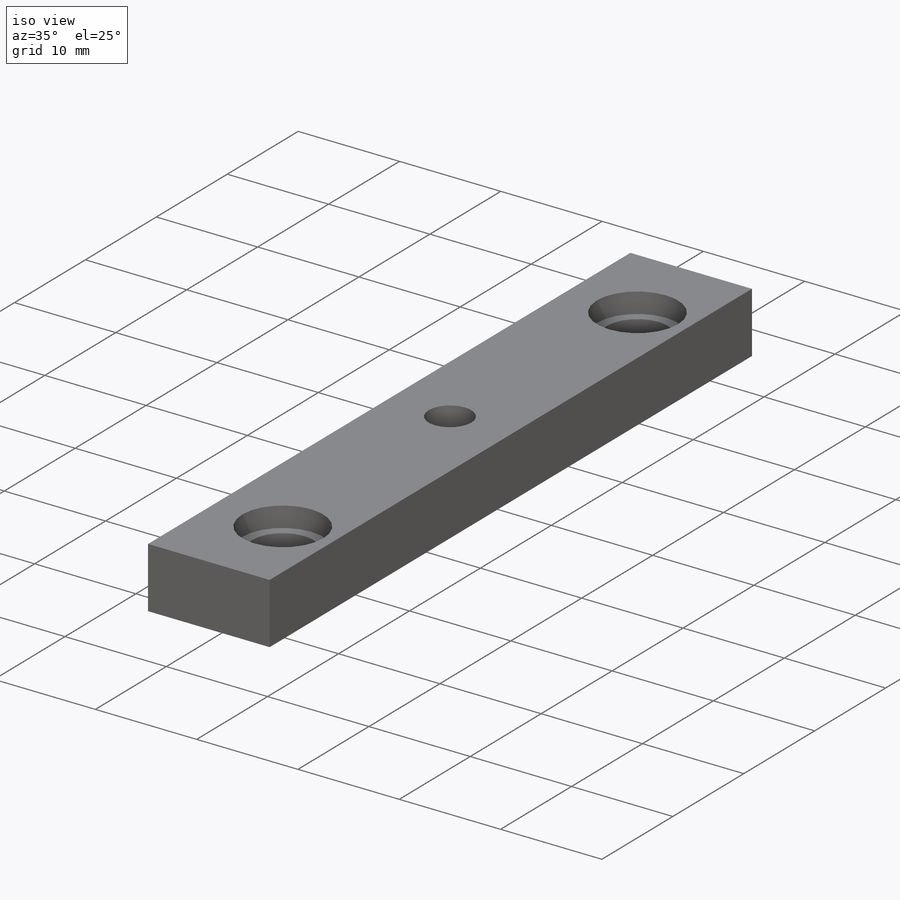
[diagram: iso view]
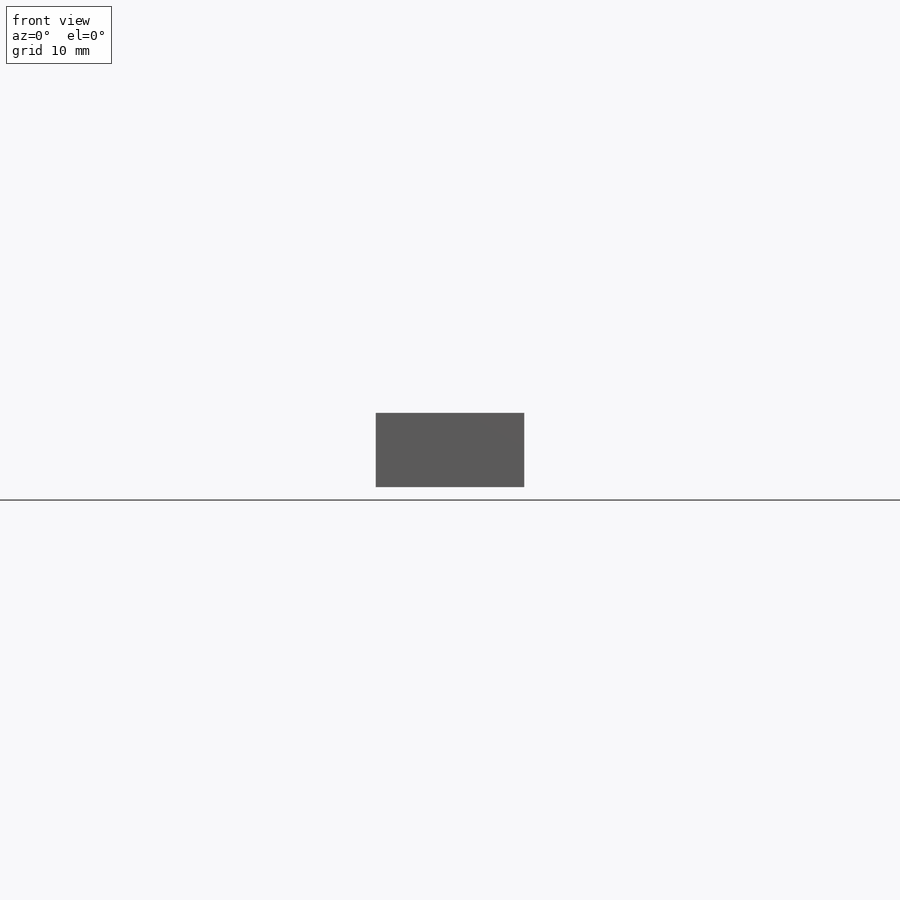
[diagram: front view]
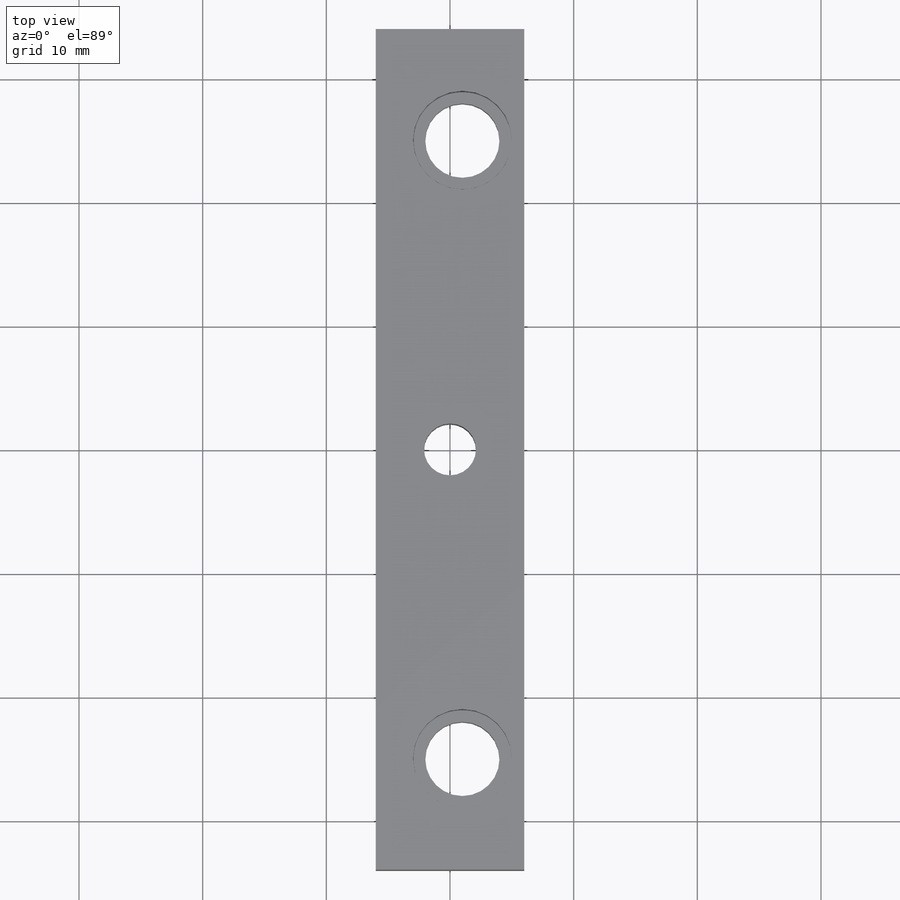
[diagram: top view]
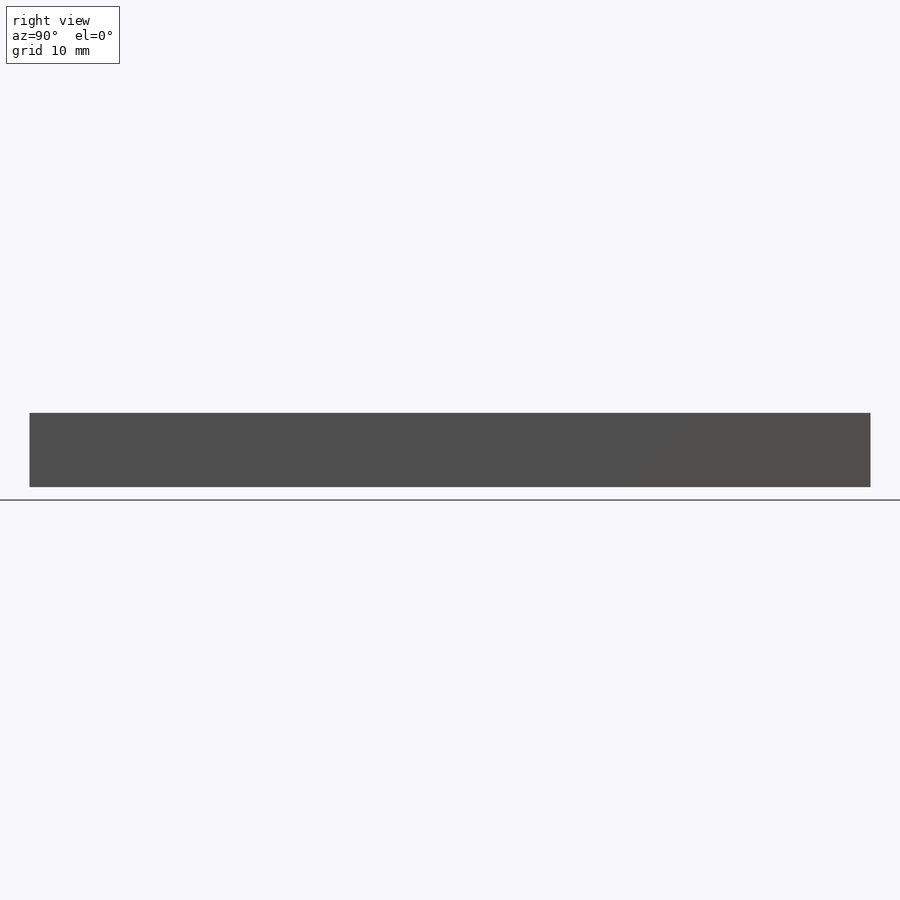
[diagram: right view]
SOLIDWORKS PART (.sldprt)
format: sldprt  version: not decoded by parser v0  size: 221,696 bytes
history: native  units: mm
features: sketch x7, extrude x3, cut_extrude x2, material x1, hole x1, thread x1 (+14 scaffold rows collapsed)
feature tree (29):
  scaffold x14  (default folders/planes/origin — collapsed)
  material  "Material <not specified>"
  sketch  "Sketch1"  dims[D1=12.0mm D2=6.0mm]
  extrude  "Boss-Extrude1"  Depth=60mm
  sketch  "Sketch2"  dims[D1=6.0mm D2=5.0mm D3=5.0mm D4=50.0mm D5=5.0mm]
  cut_extrude  "Cut-Extrude1"  [1 undecoded]
  sketch  "Sketch3"  dims[D1=8.0mm]
  cut_extrude  "Cut-Extrude2"  Depth=2mm
  sketch  "Sketch4"
  extrude  "Boss-Extrude2"  Depth=4mm
  sketch  "Sketch5"
  extrude  "Boss-Extrude3"  Depth=4mm
  hole  "M5 Tapped Hole1"  Diameter=4.2mm Depth=52mm
  sketch  "Sketch7"  dims[D1=6.0mm D2=35.0mm D3=35.0mm]
  sketch  "Sketch6"  dims[hole-wizard template sketch: 47 standard entries collapsed; hole parameters kept: c15.Tap Drill Depth=52.0mm c15.D3=~14.816244mm c15.Drill Angle=118.0deg]
  thread  "Hole Thread1"  Diameter=6mm  [1 undecoded]
decode coverage: 11 of 14 modeling features carry decoded parameters
note: ~ marks probable driven/reference dimensions
note: 2 parameter values undecoded
note: suppression state not decoded; provenance and decode notes live in map.json
